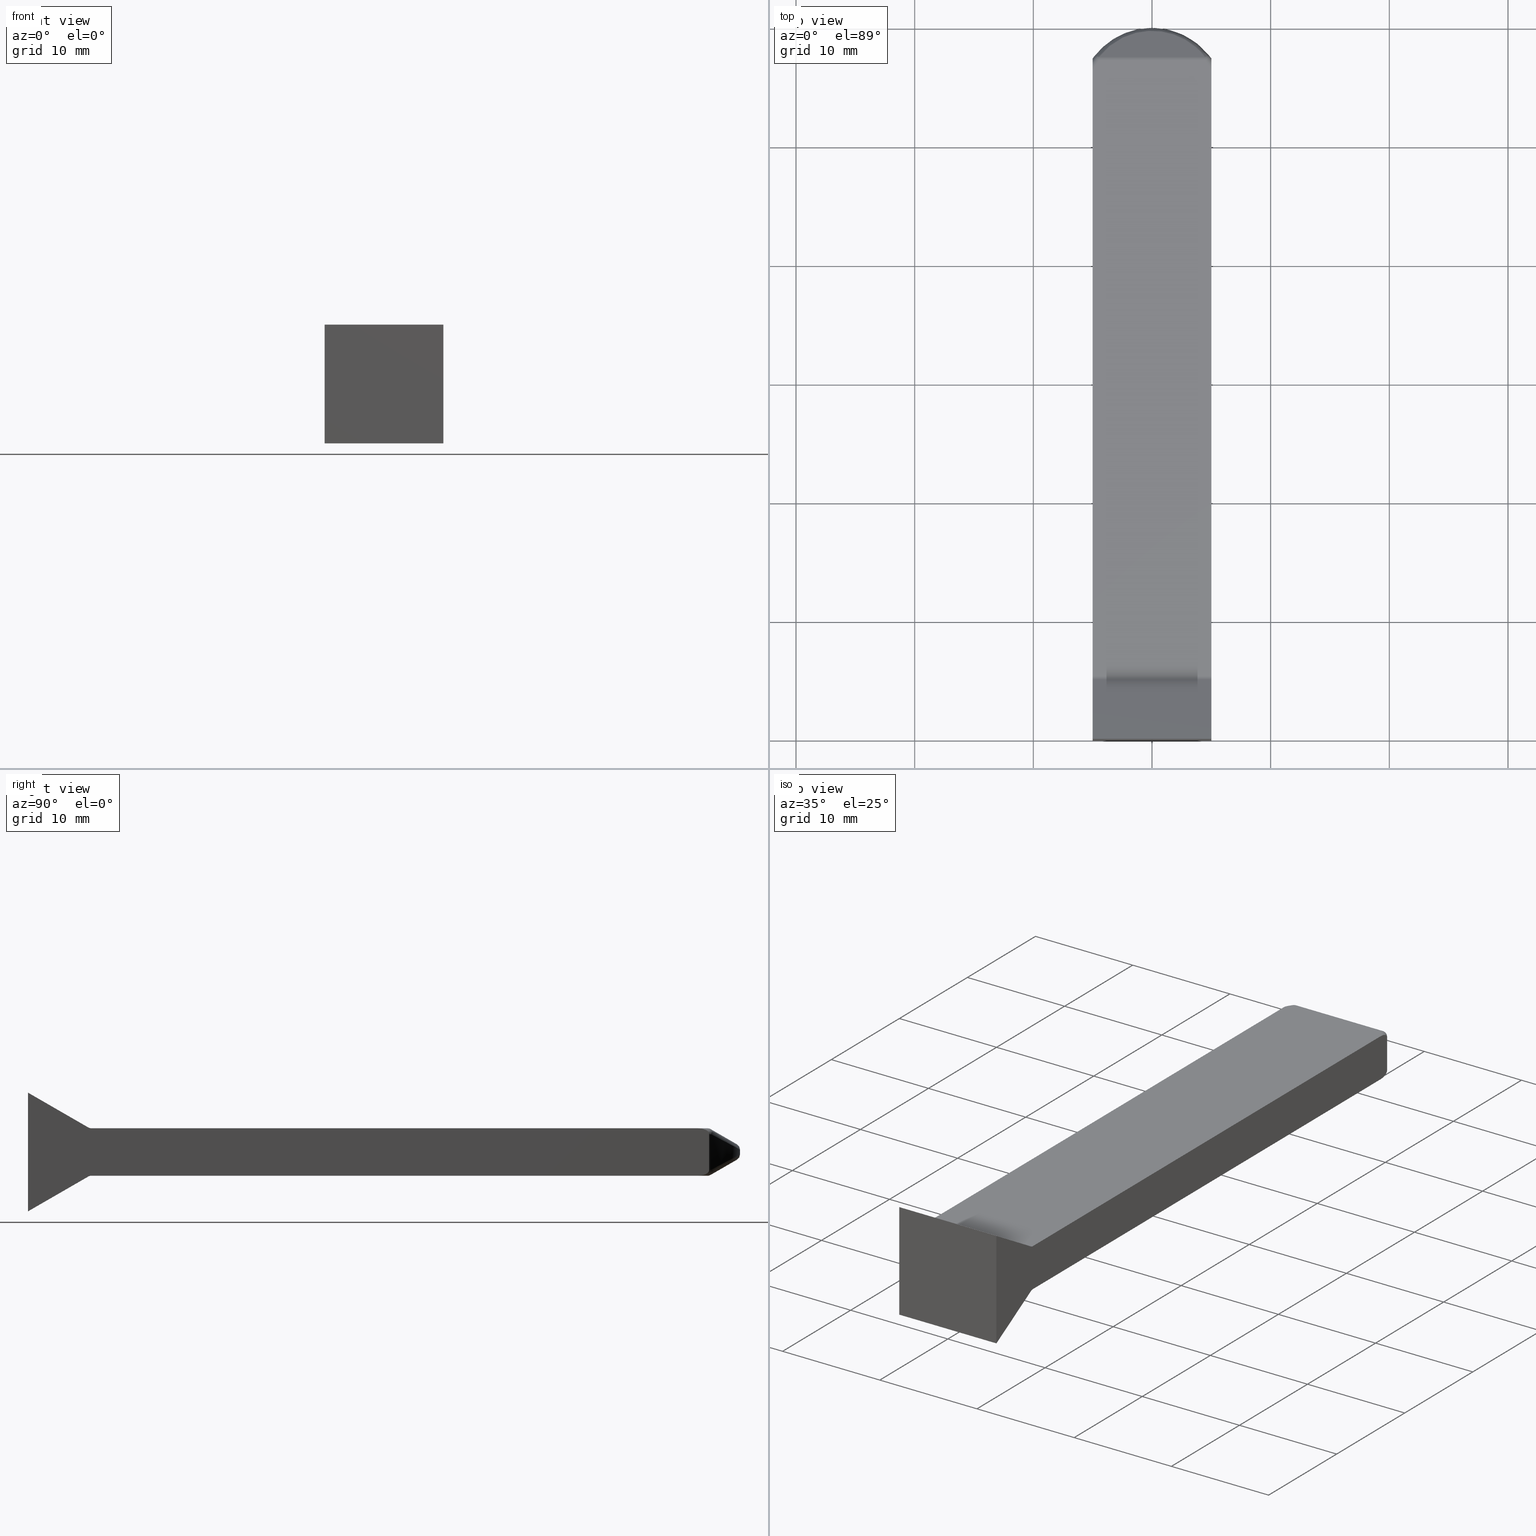
[diagram: canonical four-view strip — front | top / right | iso, engineering-drawing reading convention]
A machine part, canonical four-view strip (front | top / right | iso — engineering-drawing reading convention). The complete STEP part file that produces these views, byte-faithful:
ISO-10303-21;
HEADER;
/* Generated by software containing ST-Developer
 * from STEP Tools, Inc. (www.steptools.com) 
 */

FILE_DESCRIPTION(
/* description */ ('WKZ-0453'),
/* implementation_level */ '2;1');

FILE_NAME(
/* name */ 
'H:\\Eigene Dateien\\CAD Workspace Vault\\CAD\\E_3_Nocken\\E_3_01_Aufs
chwei\X\DFnocke\\03_F\X\E4cher\\E_3_01_03_00_00_WKZ-0453.stp',
/* time_stamp */ '2024-02-06T14:03:38+01:00',
/* author */ ('DFischer'),
/* organization */ (''),
/* preprocessor_version */ 'ST-DEVELOPER v18.1',
/* originating_system */ 'Autodesk Inventor 2021',
/* authorisation */ '');

FILE_SCHEMA (('AUTOMOTIVE_DESIGN { 1 0 10303 214 3 1 1 }'));
ENDSEC;

DATA;
#10=MECHANICAL_DESIGN_GEOMETRIC_PRESENTATION_REPRESENTATION('',(#13),#783);
#11=SHAPE_REPRESENTATION_RELATIONSHIP('SRR','None',#790,#12);
#12=ADVANCED_BREP_SHAPE_REPRESENTATION('',(#14),#782);
#13=STYLED_ITEM('',(#799),#14);
#14=MANIFOLD_SOLID_BREP('Volumenk\X\F6rper1',#381);
#15=CYLINDRICAL_SURFACE('',#424,6.11029034892354);
#16=CYLINDRICAL_SURFACE('',#441,0.5);
#17=CYLINDRICAL_SURFACE('',#443,0.5);
#18=CYLINDRICAL_SURFACE('',#444,0.5);
#19=CYLINDRICAL_SURFACE('',#446,0.5);
#20=TOROIDAL_SURFACE('',#415,5.61029034892354,0.5);
#21=TOROIDAL_SURFACE('',#418,5.61029034892354,0.5);
#22=TOROIDAL_SURFACE('',#437,5.61029034892354,0.5);
#23=TOROIDAL_SURFACE('',#439,5.61029034892354,0.5);
#24=ELLIPSE('',#410,6.47820528636593,5.61029034892354);
#25=ELLIPSE('',#411,6.9157381443504,6.11029034892354);
#26=ELLIPSE('',#426,6.9157381443504,6.11029034892354);
#27=ELLIPSE('',#433,6.47820528636593,5.61029034892354);
#28=B_SPLINE_SURFACE_WITH_KNOTS('',3,3,((#628,#629,#630,#631,#632,#633),
(#634,#635,#636,#637,#638,#639),(#640,#641,#642,#643,#644,#645),(#646,#647,
#648,#649,#650,#651),(#652,#653,#654,#655,#656,#657)),.UNSPECIFIED.,.F.,
 .F.,.F.,(4,1,4),(4,1,1,4),(0.,0.5,1.),(-0.924604284632391,-0.396258979128167,
0.132086326376056,0.924604284632392),.UNSPECIFIED.);
#29=B_SPLINE_SURFACE_WITH_KNOTS('',3,3,((#721,#722,#723,#724,#725,#726),
(#727,#728,#729,#730,#731,#732),(#733,#734,#735,#736,#737,#738),(#739,#740,
#741,#742,#743,#744),(#745,#746,#747,#748,#749,#750)),.UNSPECIFIED.,.F.,
 .F.,.F.,(4,1,4),(4,1,1,4),(0.,0.5,1.),(-0.924604284632393,-0.132086326376056,
0.396258979128168,0.924604284632393),.UNSPECIFIED.);
#30=SPHERICAL_SURFACE('',#405,0.5);
#31=SPHERICAL_SURFACE('',#412,0.5);
#32=SPHERICAL_SURFACE('',#428,0.5);
#33=SPHERICAL_SURFACE('',#434,0.5);
#34=B_SPLINE_CURVE_WITH_KNOTS('',3,(#593,#594,#595,#596,#597,#598,#599,
#600,#601,#602),.UNSPECIFIED.,.F.,.F.,(4,2,2,2,4),(0.532441530368069,0.547450862035391,
0.567695790465013,0.597524915434434,0.64457020237994),.UNSPECIFIED.);
#35=B_SPLINE_CURVE_WITH_KNOTS('',3,(#606,#607,#608,#609,#610,#611,#612,
#613,#614,#615),.UNSPECIFIED.,.F.,.F.,(4,2,2,2,4),(0.420312858356198,0.467358145301704,
0.497187270271125,0.517432198700747,0.532441530368069),.UNSPECIFIED.);
#36=B_SPLINE_CURVE_WITH_KNOTS('',3,(#673,#674,#675,#676,#677,#678,#679,
#680,#681,#682),.UNSPECIFIED.,.F.,.F.,(4,2,2,2,4),(0.532441530368069,0.547450862035391,
0.567695790465013,0.597524915434435,0.64457020237994),.UNSPECIFIED.);
#37=B_SPLINE_CURVE_WITH_KNOTS('',3,(#694,#695,#696,#697,#698,#699,#700,
#701,#702,#703),.UNSPECIFIED.,.F.,.F.,(4,2,2,2,4),(0.420312858356198,0.467358145301704,
0.497187270271125,0.517432198700747,0.532441530368069),.UNSPECIFIED.);
#38=CIRCLE('',#403,0.5);
#39=CIRCLE('',#404,0.5);
#40=CIRCLE('',#406,0.5);
#41=CIRCLE('',#407,0.500000000000001);
#42=CIRCLE('',#408,0.5);
#43=CIRCLE('',#409,0.500000000000001);
#44=CIRCLE('',#413,0.500000000000001);
#45=CIRCLE('',#414,0.5);
#46=CIRCLE('',#416,6.11029034892354);
#47=CIRCLE('',#417,5.61029034892354);
#48=CIRCLE('',#419,5.61029034892354);
#49=CIRCLE('',#420,6.11029034892354);
#50=CIRCLE('',#422,0.5);
#51=CIRCLE('',#423,0.5);
#52=CIRCLE('',#425,6.11029034892354);
#53=CIRCLE('',#427,6.11029034892354);
#54=CIRCLE('',#429,0.499999999999999);
#55=CIRCLE('',#430,0.500000000000002);
#56=CIRCLE('',#431,0.5);
#57=CIRCLE('',#432,0.500000000000002);
#58=CIRCLE('',#435,0.500000000000003);
#59=CIRCLE('',#436,0.5);
#60=CIRCLE('',#438,5.61029034892354);
#61=CIRCLE('',#440,5.61029034892354);
#62=FACE_OUTER_BOUND('',#86,.T.);
#63=FACE_OUTER_BOUND('',#87,.T.);
#64=FACE_OUTER_BOUND('',#88,.T.);
#65=FACE_OUTER_BOUND('',#89,.T.);
#66=FACE_OUTER_BOUND('',#90,.T.);
#67=FACE_OUTER_BOUND('',#91,.T.);
#68=FACE_OUTER_BOUND('',#92,.T.);
#69=FACE_OUTER_BOUND('',#93,.T.);
#70=FACE_OUTER_BOUND('',#94,.T.);
#71=FACE_OUTER_BOUND('',#95,.T.);
#72=FACE_OUTER_BOUND('',#96,.T.);
#73=FACE_OUTER_BOUND('',#97,.T.);
#74=FACE_OUTER_BOUND('',#98,.T.);
#75=FACE_OUTER_BOUND('',#99,.T.);
#76=FACE_OUTER_BOUND('',#100,.T.);
#77=FACE_OUTER_BOUND('',#101,.T.);
#78=FACE_OUTER_BOUND('',#102,.T.);
#79=FACE_OUTER_BOUND('',#103,.T.);
#80=FACE_OUTER_BOUND('',#104,.T.);
#81=FACE_OUTER_BOUND('',#105,.T.);
#82=FACE_OUTER_BOUND('',#106,.T.);
#83=FACE_OUTER_BOUND('',#107,.T.);
#84=FACE_OUTER_BOUND('',#108,.T.);
#85=FACE_OUTER_BOUND('',#109,.T.);
#86=EDGE_LOOP('',(#240,#241,#242,#243));
#87=EDGE_LOOP('',(#244,#245,#246,#247,#248,#249,#250,#251,#252,#253));
#88=EDGE_LOOP('',(#254,#255,#256));
#89=EDGE_LOOP('',(#257,#258,#259,#260));
#90=EDGE_LOOP('',(#261,#262,#263));
#91=EDGE_LOOP('',(#264,#265,#266,#267));
#92=EDGE_LOOP('',(#268,#269,#270,#271));
#93=EDGE_LOOP('',(#272,#273,#274,#275,#276,#277,#278,#279,#280,#281));
#94=EDGE_LOOP('',(#282,#283,#284,#285,#286,#287,#288,#289));
#95=EDGE_LOOP('',(#290,#291,#292));
#96=EDGE_LOOP('',(#293,#294,#295,#296));
#97=EDGE_LOOP('',(#297,#298,#299));
#98=EDGE_LOOP('',(#300,#301,#302,#303));
#99=EDGE_LOOP('',(#304,#305,#306,#307));
#100=EDGE_LOOP('',(#308,#309,#310,#311));
#101=EDGE_LOOP('',(#312,#313,#314,#315,#316,#317));
#102=EDGE_LOOP('',(#318,#319,#320,#321));
#103=EDGE_LOOP('',(#322,#323,#324,#325));
#104=EDGE_LOOP('',(#326,#327,#328,#329,#330,#331));
#105=EDGE_LOOP('',(#332,#333,#334,#335));
#106=EDGE_LOOP('',(#336,#337,#338,#339));
#107=EDGE_LOOP('',(#340,#341));
#108=EDGE_LOOP('',(#342,#343,#344,#345));
#109=EDGE_LOOP('',(#346,#347));
#110=LINE('',#579,#132);
#111=LINE('',#581,#133);
#112=LINE('',#583,#134);
#113=LINE('',#584,#135);
#114=LINE('',#587,#136);
#115=LINE('',#591,#137);
#116=LINE('',#604,#138);
#117=LINE('',#617,#139);
#118=LINE('',#620,#140);
#119=LINE('',#687,#141);
#120=LINE('',#690,#142);
#121=LINE('',#692,#143);
#122=LINE('',#705,#144);
#123=LINE('',#708,#145);
#124=LINE('',#763,#146);
#125=LINE('',#764,#147);
#126=LINE('',#766,#148);
#127=LINE('',#768,#149);
#128=LINE('',#770,#150);
#129=LINE('',#771,#151);
#130=LINE('',#773,#152);
#131=LINE('',#775,#153);
#132=VECTOR('',#455,10.);
#133=VECTOR('',#456,10.);
#134=VECTOR('',#457,10.);
#135=VECTOR('',#458,10.);
#136=VECTOR('',#461,10.);
#137=VECTOR('',#464,10.);
#138=VECTOR('',#465,10.);
#139=VECTOR('',#466,10.);
#140=VECTOR('',#469,10.);
#141=VECTOR('',#504,10.);
#142=VECTOR('',#507,10.);
#143=VECTOR('',#508,10.);
#144=VECTOR('',#509,10.);
#145=VECTOR('',#512,10.);
#146=VECTOR('',#549,10.);
#147=VECTOR('',#550,10.);
#148=VECTOR('',#553,10.);
#149=VECTOR('',#556,10.);
#150=VECTOR('',#559,10.);
#151=VECTOR('',#560,10.);
#152=VECTOR('',#563,10.);
#153=VECTOR('',#566,10.);
#154=VERTEX_POINT('',#577);
#155=VERTEX_POINT('',#578);
#156=VERTEX_POINT('',#580);
#157=VERTEX_POINT('',#582);
#158=VERTEX_POINT('',#586);
#159=VERTEX_POINT('',#588);
#160=VERTEX_POINT('',#590);
#161=VERTEX_POINT('',#592);
#162=VERTEX_POINT('',#603);
#163=VERTEX_POINT('',#605);
#164=VERTEX_POINT('',#616);
#165=VERTEX_POINT('',#618);
#166=VERTEX_POINT('',#622);
#167=VERTEX_POINT('',#623);
#168=VERTEX_POINT('',#625);
#169=VERTEX_POINT('',#658);
#170=VERTEX_POINT('',#659);
#171=VERTEX_POINT('',#664);
#172=VERTEX_POINT('',#671);
#173=VERTEX_POINT('',#672);
#174=VERTEX_POINT('',#686);
#175=VERTEX_POINT('',#688);
#176=VERTEX_POINT('',#691);
#177=VERTEX_POINT('',#693);
#178=VERTEX_POINT('',#704);
#179=VERTEX_POINT('',#706);
#180=VERTEX_POINT('',#710);
#181=VERTEX_POINT('',#712);
#182=VERTEX_POINT('',#716);
#183=VERTEX_POINT('',#718);
#184=VERTEX_POINT('',#751);
#185=VERTEX_POINT('',#755);
#186=EDGE_CURVE('',#154,#155,#110,.T.);
#187=EDGE_CURVE('',#156,#155,#111,.T.);
#188=EDGE_CURVE('',#157,#156,#112,.T.);
#189=EDGE_CURVE('',#154,#157,#113,.T.);
#190=EDGE_CURVE('',#155,#158,#114,.T.);
#191=EDGE_CURVE('',#159,#158,#38,.T.);
#192=EDGE_CURVE('',#159,#160,#115,.T.);
#193=EDGE_CURVE('',#161,#160,#34,.T.);
#194=EDGE_CURVE('',#161,#162,#116,.T.);
#195=EDGE_CURVE('',#163,#162,#35,.T.);
#196=EDGE_CURVE('',#163,#164,#117,.T.);
#197=EDGE_CURVE('',#165,#164,#39,.T.);
#198=EDGE_CURVE('',#165,#156,#118,.T.);
#199=EDGE_CURVE('',#166,#167,#40,.T.);
#200=EDGE_CURVE('',#167,#168,#41,.T.);
#201=EDGE_CURVE('',#168,#166,#42,.T.);
#202=EDGE_CURVE('',#169,#170,#43,.T.);
#203=EDGE_CURVE('',#170,#168,#24,.T.);
#204=EDGE_CURVE('',#167,#169,#25,.T.);
#205=EDGE_CURVE('',#169,#171,#44,.T.);
#206=EDGE_CURVE('',#171,#170,#45,.T.);
#207=EDGE_CURVE('',#162,#167,#46,.T.);
#208=EDGE_CURVE('',#166,#163,#47,.T.);
#209=EDGE_CURVE('',#172,#173,#36,.T.);
#210=EDGE_CURVE('',#173,#171,#48,.T.);
#211=EDGE_CURVE('',#169,#172,#49,.T.);
#212=EDGE_CURVE('',#157,#174,#119,.T.);
#213=EDGE_CURVE('',#175,#174,#50,.T.);
#214=EDGE_CURVE('',#175,#173,#120,.T.);
#215=EDGE_CURVE('',#172,#176,#121,.T.);
#216=EDGE_CURVE('',#177,#176,#37,.T.);
#217=EDGE_CURVE('',#177,#178,#122,.T.);
#218=EDGE_CURVE('',#179,#178,#51,.T.);
#219=EDGE_CURVE('',#179,#154,#123,.T.);
#220=EDGE_CURVE('',#180,#161,#52,.T.);
#221=EDGE_CURVE('',#181,#180,#26,.T.);
#222=EDGE_CURVE('',#176,#181,#53,.T.);
#223=EDGE_CURVE('',#182,#181,#54,.T.);
#224=EDGE_CURVE('',#181,#183,#55,.T.);
#225=EDGE_CURVE('',#183,#182,#56,.T.);
#226=EDGE_CURVE('',#180,#184,#57,.T.);
#227=EDGE_CURVE('',#184,#183,#27,.T.);
#228=EDGE_CURVE('',#180,#185,#58,.T.);
#229=EDGE_CURVE('',#185,#184,#59,.T.);
#230=EDGE_CURVE('',#182,#177,#60,.T.);
#231=EDGE_CURVE('',#160,#185,#61,.T.);
#232=EDGE_CURVE('',#185,#182,#124,.T.);
#233=EDGE_CURVE('',#183,#184,#125,.T.);
#234=EDGE_CURVE('',#178,#159,#126,.T.);
#235=EDGE_CURVE('',#158,#179,#127,.T.);
#236=EDGE_CURVE('',#171,#166,#128,.T.);
#237=EDGE_CURVE('',#168,#170,#129,.T.);
#238=EDGE_CURVE('',#164,#175,#130,.T.);
#239=EDGE_CURVE('',#174,#165,#131,.T.);
#240=ORIENTED_EDGE('',*,*,#186,.T.);
#241=ORIENTED_EDGE('',*,*,#187,.F.);
#242=ORIENTED_EDGE('',*,*,#188,.F.);
#243=ORIENTED_EDGE('',*,*,#189,.F.);
#244=ORIENTED_EDGE('',*,*,#187,.T.);
#245=ORIENTED_EDGE('',*,*,#190,.T.);
#246=ORIENTED_EDGE('',*,*,#191,.F.);
#247=ORIENTED_EDGE('',*,*,#192,.T.);
#248=ORIENTED_EDGE('',*,*,#193,.F.);
#249=ORIENTED_EDGE('',*,*,#194,.T.);
#250=ORIENTED_EDGE('',*,*,#195,.F.);
#251=ORIENTED_EDGE('',*,*,#196,.T.);
#252=ORIENTED_EDGE('',*,*,#197,.F.);
#253=ORIENTED_EDGE('',*,*,#198,.T.);
#254=ORIENTED_EDGE('',*,*,#199,.T.);
#255=ORIENTED_EDGE('',*,*,#200,.T.);
#256=ORIENTED_EDGE('',*,*,#201,.T.);
#257=ORIENTED_EDGE('',*,*,#202,.T.);
#258=ORIENTED_EDGE('',*,*,#203,.T.);
#259=ORIENTED_EDGE('',*,*,#200,.F.);
#260=ORIENTED_EDGE('',*,*,#204,.T.);
#261=ORIENTED_EDGE('',*,*,#205,.T.);
#262=ORIENTED_EDGE('',*,*,#206,.T.);
#263=ORIENTED_EDGE('',*,*,#202,.F.);
#264=ORIENTED_EDGE('',*,*,#195,.T.);
#265=ORIENTED_EDGE('',*,*,#207,.T.);
#266=ORIENTED_EDGE('',*,*,#199,.F.);
#267=ORIENTED_EDGE('',*,*,#208,.T.);
#268=ORIENTED_EDGE('',*,*,#209,.T.);
#269=ORIENTED_EDGE('',*,*,#210,.T.);
#270=ORIENTED_EDGE('',*,*,#205,.F.);
#271=ORIENTED_EDGE('',*,*,#211,.T.);
#272=ORIENTED_EDGE('',*,*,#189,.T.);
#273=ORIENTED_EDGE('',*,*,#212,.T.);
#274=ORIENTED_EDGE('',*,*,#213,.F.);
#275=ORIENTED_EDGE('',*,*,#214,.T.);
#276=ORIENTED_EDGE('',*,*,#209,.F.);
#277=ORIENTED_EDGE('',*,*,#215,.T.);
#278=ORIENTED_EDGE('',*,*,#216,.F.);
#279=ORIENTED_EDGE('',*,*,#217,.T.);
#280=ORIENTED_EDGE('',*,*,#218,.F.);
#281=ORIENTED_EDGE('',*,*,#219,.T.);
#282=ORIENTED_EDGE('',*,*,#211,.F.);
#283=ORIENTED_EDGE('',*,*,#204,.F.);
#284=ORIENTED_EDGE('',*,*,#207,.F.);
#285=ORIENTED_EDGE('',*,*,#194,.F.);
#286=ORIENTED_EDGE('',*,*,#220,.F.);
#287=ORIENTED_EDGE('',*,*,#221,.F.);
#288=ORIENTED_EDGE('',*,*,#222,.F.);
#289=ORIENTED_EDGE('',*,*,#215,.F.);
#290=ORIENTED_EDGE('',*,*,#223,.T.);
#291=ORIENTED_EDGE('',*,*,#224,.T.);
#292=ORIENTED_EDGE('',*,*,#225,.T.);
#293=ORIENTED_EDGE('',*,*,#226,.T.);
#294=ORIENTED_EDGE('',*,*,#227,.T.);
#295=ORIENTED_EDGE('',*,*,#224,.F.);
#296=ORIENTED_EDGE('',*,*,#221,.T.);
#297=ORIENTED_EDGE('',*,*,#228,.T.);
#298=ORIENTED_EDGE('',*,*,#229,.T.);
#299=ORIENTED_EDGE('',*,*,#226,.F.);
#300=ORIENTED_EDGE('',*,*,#216,.T.);
#301=ORIENTED_EDGE('',*,*,#222,.T.);
#302=ORIENTED_EDGE('',*,*,#223,.F.);
#303=ORIENTED_EDGE('',*,*,#230,.T.);
#304=ORIENTED_EDGE('',*,*,#193,.T.);
#305=ORIENTED_EDGE('',*,*,#231,.T.);
#306=ORIENTED_EDGE('',*,*,#228,.F.);
#307=ORIENTED_EDGE('',*,*,#220,.T.);
#308=ORIENTED_EDGE('',*,*,#229,.F.);
#309=ORIENTED_EDGE('',*,*,#232,.T.);
#310=ORIENTED_EDGE('',*,*,#225,.F.);
#311=ORIENTED_EDGE('',*,*,#233,.T.);
#312=ORIENTED_EDGE('',*,*,#231,.F.);
#313=ORIENTED_EDGE('',*,*,#192,.F.);
#314=ORIENTED_EDGE('',*,*,#234,.F.);
#315=ORIENTED_EDGE('',*,*,#217,.F.);
#316=ORIENTED_EDGE('',*,*,#230,.F.);
#317=ORIENTED_EDGE('',*,*,#232,.F.);
#318=ORIENTED_EDGE('',*,*,#218,.T.);
#319=ORIENTED_EDGE('',*,*,#234,.T.);
#320=ORIENTED_EDGE('',*,*,#191,.T.);
#321=ORIENTED_EDGE('',*,*,#235,.T.);
#322=ORIENTED_EDGE('',*,*,#206,.F.);
#323=ORIENTED_EDGE('',*,*,#236,.T.);
#324=ORIENTED_EDGE('',*,*,#201,.F.);
#325=ORIENTED_EDGE('',*,*,#237,.T.);
#326=ORIENTED_EDGE('',*,*,#210,.F.);
#327=ORIENTED_EDGE('',*,*,#214,.F.);
#328=ORIENTED_EDGE('',*,*,#238,.F.);
#329=ORIENTED_EDGE('',*,*,#196,.F.);
#330=ORIENTED_EDGE('',*,*,#208,.F.);
#331=ORIENTED_EDGE('',*,*,#236,.F.);
#332=ORIENTED_EDGE('',*,*,#213,.T.);
#333=ORIENTED_EDGE('',*,*,#239,.T.);
#334=ORIENTED_EDGE('',*,*,#197,.T.);
#335=ORIENTED_EDGE('',*,*,#238,.T.);
#336=ORIENTED_EDGE('',*,*,#239,.F.);
#337=ORIENTED_EDGE('',*,*,#212,.F.);
#338=ORIENTED_EDGE('',*,*,#188,.T.);
#339=ORIENTED_EDGE('',*,*,#198,.F.);
#340=ORIENTED_EDGE('',*,*,#227,.F.);
#341=ORIENTED_EDGE('',*,*,#233,.F.);
#342=ORIENTED_EDGE('',*,*,#235,.F.);
#343=ORIENTED_EDGE('',*,*,#190,.F.);
#344=ORIENTED_EDGE('',*,*,#186,.F.);
#345=ORIENTED_EDGE('',*,*,#219,.F.);
#346=ORIENTED_EDGE('',*,*,#203,.F.);
#347=ORIENTED_EDGE('',*,*,#237,.F.);
#348=PLANE('',#401);
#349=PLANE('',#402);
#350=PLANE('',#421);
#351=PLANE('',#442);
#352=PLANE('',#445);
#353=PLANE('',#447);
#354=PLANE('',#448);
#355=PLANE('',#449);
#356=PLANE('',#450);
#357=ADVANCED_FACE('',(#62),#348,.F.);
#358=ADVANCED_FACE('',(#63),#349,.T.);
#359=ADVANCED_FACE('',(#64),#30,.T.);
#360=ADVANCED_FACE('',(#65),#28,.F.);
#361=ADVANCED_FACE('',(#66),#31,.T.);
#362=ADVANCED_FACE('',(#67),#20,.T.);
#363=ADVANCED_FACE('',(#68),#21,.T.);
#364=ADVANCED_FACE('',(#69),#350,.T.);
#365=ADVANCED_FACE('',(#70),#15,.T.);
#366=ADVANCED_FACE('',(#71),#32,.T.);
#367=ADVANCED_FACE('',(#72),#29,.F.);
#368=ADVANCED_FACE('',(#73),#33,.T.);
#369=ADVANCED_FACE('',(#74),#22,.T.);
#370=ADVANCED_FACE('',(#75),#23,.T.);
#371=ADVANCED_FACE('',(#76),#16,.T.);
#372=ADVANCED_FACE('',(#77),#351,.T.);
#373=ADVANCED_FACE('',(#78),#17,.F.);
#374=ADVANCED_FACE('',(#79),#18,.T.);
#375=ADVANCED_FACE('',(#80),#352,.T.);
#376=ADVANCED_FACE('',(#81),#19,.F.);
#377=ADVANCED_FACE('',(#82),#353,.T.);
#378=ADVANCED_FACE('',(#83),#354,.T.);
#379=ADVANCED_FACE('',(#84),#355,.T.);
#380=ADVANCED_FACE('',(#85),#356,.T.);
#381=CLOSED_SHELL('',(#357,#358,#359,#360,#361,#362,#363,#364,#365,#366,
#367,#368,#369,#370,#371,#372,#373,#374,#375,#376,#377,#378,#379,#380));
#382=DERIVED_UNIT_ELEMENT(#384,1.);
#383=DERIVED_UNIT_ELEMENT(#785,3.);
#384=(
MASS_UNIT()
NAMED_UNIT(*)
SI_UNIT($,.GRAM.)
);
#385=DERIVED_UNIT((#382,#383));
#386=MEASURE_REPRESENTATION_ITEM('density measure',
POSITIVE_RATIO_MEASURE(1.),#385);
#387=PROPERTY_DEFINITION_REPRESENTATION(#392,#389);
#388=PROPERTY_DEFINITION_REPRESENTATION(#393,#390);
#389=REPRESENTATION('material name',(#391),#782);
#390=REPRESENTATION('density',(#386),#782);
#391=DESCRIPTIVE_REPRESENTATION_ITEM('Generisch','Generisch');
#392=PROPERTY_DEFINITION('material property','material name',#792);
#393=PROPERTY_DEFINITION('material property','density of part',#792);
#394=DATE_TIME_ROLE('creation_date');
#395=APPLIED_DATE_AND_TIME_ASSIGNMENT(#396,#394,(#792));
#396=DATE_AND_TIME(#397,#398);
#397=CALENDAR_DATE(2023,19,12);
#398=LOCAL_TIME(0,0,0.,#399);
#399=COORDINATED_UNIVERSAL_TIME_OFFSET(0,0,.BEHIND.);
#400=AXIS2_PLACEMENT_3D('placement',#575,#451,#452);
#401=AXIS2_PLACEMENT_3D('',#576,#453,#454);
#402=AXIS2_PLACEMENT_3D('',#585,#459,#460);
#403=AXIS2_PLACEMENT_3D('',#589,#462,#463);
#404=AXIS2_PLACEMENT_3D('',#619,#467,#468);
#405=AXIS2_PLACEMENT_3D('',#621,#470,#471);
#406=AXIS2_PLACEMENT_3D('',#624,#472,#473);
#407=AXIS2_PLACEMENT_3D('',#626,#474,#475);
#408=AXIS2_PLACEMENT_3D('',#627,#476,#477);
#409=AXIS2_PLACEMENT_3D('',#660,#478,#479);
#410=AXIS2_PLACEMENT_3D('',#661,#480,#481);
#411=AXIS2_PLACEMENT_3D('',#662,#482,#483);
#412=AXIS2_PLACEMENT_3D('',#663,#484,#485);
#413=AXIS2_PLACEMENT_3D('',#665,#486,#487);
#414=AXIS2_PLACEMENT_3D('',#666,#488,#489);
#415=AXIS2_PLACEMENT_3D('',#667,#490,#491);
#416=AXIS2_PLACEMENT_3D('',#668,#492,#493);
#417=AXIS2_PLACEMENT_3D('',#669,#494,#495);
#418=AXIS2_PLACEMENT_3D('',#670,#496,#497);
#419=AXIS2_PLACEMENT_3D('',#683,#498,#499);
#420=AXIS2_PLACEMENT_3D('',#684,#500,#501);
#421=AXIS2_PLACEMENT_3D('',#685,#502,#503);
#422=AXIS2_PLACEMENT_3D('',#689,#505,#506);
#423=AXIS2_PLACEMENT_3D('',#707,#510,#511);
#424=AXIS2_PLACEMENT_3D('',#709,#513,#514);
#425=AXIS2_PLACEMENT_3D('',#711,#515,#516);
#426=AXIS2_PLACEMENT_3D('',#713,#517,#518);
#427=AXIS2_PLACEMENT_3D('',#714,#519,#520);
#428=AXIS2_PLACEMENT_3D('',#715,#521,#522);
#429=AXIS2_PLACEMENT_3D('',#717,#523,#524);
#430=AXIS2_PLACEMENT_3D('',#719,#525,#526);
#431=AXIS2_PLACEMENT_3D('',#720,#527,#528);
#432=AXIS2_PLACEMENT_3D('',#752,#529,#530);
#433=AXIS2_PLACEMENT_3D('',#753,#531,#532);
#434=AXIS2_PLACEMENT_3D('',#754,#533,#534);
#435=AXIS2_PLACEMENT_3D('',#756,#535,#536);
#436=AXIS2_PLACEMENT_3D('',#757,#537,#538);
#437=AXIS2_PLACEMENT_3D('',#758,#539,#540);
#438=AXIS2_PLACEMENT_3D('',#759,#541,#542);
#439=AXIS2_PLACEMENT_3D('',#760,#543,#544);
#440=AXIS2_PLACEMENT_3D('',#761,#545,#546);
#441=AXIS2_PLACEMENT_3D('',#762,#547,#548);
#442=AXIS2_PLACEMENT_3D('',#765,#551,#552);
#443=AXIS2_PLACEMENT_3D('',#767,#554,#555);
#444=AXIS2_PLACEMENT_3D('',#769,#557,#558);
#445=AXIS2_PLACEMENT_3D('',#772,#561,#562);
#446=AXIS2_PLACEMENT_3D('',#774,#564,#565);
#447=AXIS2_PLACEMENT_3D('',#776,#567,#568);
#448=AXIS2_PLACEMENT_3D('',#777,#569,#570);
#449=AXIS2_PLACEMENT_3D('',#778,#571,#572);
#450=AXIS2_PLACEMENT_3D('',#779,#573,#574);
#451=DIRECTION('axis',(0.,0.,1.));
#452=DIRECTION('refdir',(1.,0.,0.));
#453=DIRECTION('center_axis',(0.,1.,7.93016446160828E-16));
#454=DIRECTION('ref_axis',(0.,-7.93016446160828E-16,1.));
#455=DIRECTION('',(1.,0.,0.));
#456=DIRECTION('',(0.,7.93016446160828E-16,-1.));
#457=DIRECTION('',(1.,0.,0.));
#458=DIRECTION('',(0.,-7.93016446160828E-16,1.));
#459=DIRECTION('center_axis',(1.,0.,0.));
#460=DIRECTION('ref_axis',(0.,0.,-1.));
#461=DIRECTION('',(0.,0.866025403784438,0.500000000000001));
#462=DIRECTION('center_axis',(1.,0.,0.));
#463=DIRECTION('ref_axis',(0.,-0.258819045102524,0.965925826289067));
#464=DIRECTION('',(0.,1.,-7.02809666932559E-17));
#465=DIRECTION('',(0.,0.,1.));
#466=DIRECTION('',(0.,-1.,-3.20587813129454E-16));
#467=DIRECTION('center_axis',(1.,0.,0.));
#468=DIRECTION('ref_axis',(0.,-0.258819045102524,-0.965925826289068));
#469=DIRECTION('',(0.,-0.866025403784438,0.5));
#470=DIRECTION('center_axis',(0.187714069705197,-0.878791264365374,0.438736072952544));
#471=DIRECTION('ref_axis',(0.345681652971174,0.477206363825032,0.807946954399859));
#472=DIRECTION('center_axis',(-0.60215057176192,0.798382545479793,0.));
#473=DIRECTION('ref_axis',(0.,0.,1.));
#474=DIRECTION('center_axis',(0.546851392440244,-0.725062180740125,0.418614845229527));
#475=DIRECTION('ref_axis',(0.798382545479792,0.60215057176192,0.));
#476=DIRECTION('center_axis',(1.,0.,0.));
#477=DIRECTION('ref_axis',(0.,0.258819045102525,0.965925826289067));
#478=DIRECTION('center_axis',(0.546851392440244,0.725062180740124,-0.418614845229528));
#479=DIRECTION('ref_axis',(-0.798382545479792,0.60215057176192,5.55111512312577E-16));
#480=DIRECTION('center_axis',(0.,-0.5,-0.866025403784439));
#481=DIRECTION('ref_axis',(8.56890894582901E-17,0.866025403784439,-0.5));
#482=DIRECTION('center_axis',(8.02678616115707E-17,0.468366872136282,0.883534081450895));
#483=DIRECTION('ref_axis',(8.7421489732348E-17,0.883534081450895,-0.468366872136282));
#484=DIRECTION('center_axis',(-0.187714069705197,-0.878791264365374,0.438736072952544));
#485=DIRECTION('ref_axis',(-0.345681652971173,0.477206363825033,0.807946954399859));
#486=DIRECTION('center_axis',(0.602150571761921,0.798382545479792,0.));
#487=DIRECTION('ref_axis',(-0.798382545479792,0.60215057176192,-5.55111512312577E-16));
#488=DIRECTION('center_axis',(-1.,0.,0.));
#489=DIRECTION('ref_axis',(0.,0.258819045102525,0.965925826289067));
#490=DIRECTION('center_axis',(0.,3.20587813129454E-16,-1.));
#491=DIRECTION('ref_axis',(-0.798382545479793,-0.602150571761919,-1.81697261705534E-16));
#492=DIRECTION('center_axis',(0.,-3.20587813129454E-16,1.));
#493=DIRECTION('ref_axis',(-0.798382545479793,-0.602150571761919,-1.93042134975804E-16));
#494=DIRECTION('center_axis',(0.,3.20587813129454E-16,-1.));
#495=DIRECTION('ref_axis',(-0.798382545479793,-0.602150571761919,-1.97890475461431E-16));
#496=DIRECTION('center_axis',(0.,3.20587813129454E-16,-1.));
#497=DIRECTION('ref_axis',(0.798382545479793,-0.602150571761919,-1.81697261705534E-16));
#498=DIRECTION('center_axis',(0.,3.20587813129454E-16,-1.));
#499=DIRECTION('ref_axis',(0.798382545479793,-0.602150571761919,-1.97890475461431E-16));
#500=DIRECTION('center_axis',(0.,-3.20587813129454E-16,1.));
#501=DIRECTION('ref_axis',(0.798382545479793,-0.602150571761919,-1.93042134975804E-16));
#502=DIRECTION('center_axis',(-1.,0.,0.));
#503=DIRECTION('ref_axis',(0.,0.,1.));
#504=DIRECTION('',(0.,0.866025403784438,-0.5));
#505=DIRECTION('center_axis',(-1.,0.,0.));
#506=DIRECTION('ref_axis',(0.,-0.258819045102524,-0.965925826289068));
#507=DIRECTION('',(0.,1.,3.20587813129454E-16));
#508=DIRECTION('',(0.,0.,-1.));
#509=DIRECTION('',(0.,-1.,7.02809666932559E-17));
#510=DIRECTION('center_axis',(-1.,0.,0.));
#511=DIRECTION('ref_axis',(0.,-0.258819045102524,0.965925826289067));
#512=DIRECTION('',(0.,-0.866025403784438,-0.500000000000001));
#513=DIRECTION('center_axis',(0.,0.,-1.));
#514=DIRECTION('ref_axis',(-0.818291720111279,-0.574803149606301,0.));
#515=DIRECTION('center_axis',(0.,-7.02809666932559E-17,-1.));
#516=DIRECTION('ref_axis',(-0.798382545479794,-0.602150571761918,4.23197242783243E-17));
#517=DIRECTION('center_axis',(-8.02678616115707E-17,0.468366872136282,-0.883534081450895));
#518=DIRECTION('ref_axis',(0.,0.883534081450895,0.468366872136282));
#519=DIRECTION('center_axis',(0.,-7.02809666932559E-17,-1.));
#520=DIRECTION('ref_axis',(0.798382545479794,-0.602150571761918,4.23197242783243E-17));
#521=DIRECTION('center_axis',(-0.187714069705199,-0.878791264365373,-0.438736072952545));
#522=DIRECTION('ref_axis',(-0.345681652971175,0.477206363825033,-0.807946954399858));
#523=DIRECTION('center_axis',(0.602150571761919,0.798382545479793,0.));
#524=DIRECTION('ref_axis',(0.,0.,-1.));
#525=DIRECTION('center_axis',(-0.546851392440242,-0.725062180740123,-0.418614845229532));
#526=DIRECTION('ref_axis',(-0.798382545479793,0.602150571761919,0.));
#527=DIRECTION('center_axis',(-1.,0.,0.));
#528=DIRECTION('ref_axis',(0.,0.258819045102525,-0.965925826289067));
#529=DIRECTION('center_axis',(-0.546851392440244,0.725062180740126,0.418614845229525));
#530=DIRECTION('ref_axis',(0.798382545479793,0.602150571761919,5.55111512312576E-16));
#531=DIRECTION('center_axis',(0.,-0.5,0.866025403784438));
#532=DIRECTION('ref_axis',(0.,0.866025403784438,0.5));
#533=DIRECTION('center_axis',(0.187714069705199,-0.878791264365372,-0.438736072952547));
#534=DIRECTION('ref_axis',(0.345681652971175,0.477206363825034,-0.807946954399858));
#535=DIRECTION('center_axis',(-0.602150571761917,0.798382545479794,0.));
#536=DIRECTION('ref_axis',(0.798382545479795,0.602150571761917,0.));
#537=DIRECTION('center_axis',(1.,0.,0.));
#538=DIRECTION('ref_axis',(0.,0.258819045102525,-0.965925826289067));
#539=DIRECTION('center_axis',(0.,7.02809666932559E-17,1.));
#540=DIRECTION('ref_axis',(0.798382545479794,-0.602150571761917,3.63394523411067E-17));
#541=DIRECTION('center_axis',(0.,7.02809666932559E-17,1.));
#542=DIRECTION('ref_axis',(0.798382545479794,-0.602150571761917,3.71044641490183E-17));
#543=DIRECTION('center_axis',(0.,7.02809666932559E-17,1.));
#544=DIRECTION('ref_axis',(-0.798382545479794,-0.602150571761918,3.63394523411067E-17));
#545=DIRECTION('center_axis',(0.,7.02809666932559E-17,1.));
#546=DIRECTION('ref_axis',(-0.798382545479794,-0.602150571761918,3.71044641490183E-17));
#547=DIRECTION('center_axis',(1.,0.,0.));
#548=DIRECTION('ref_axis',(0.,0.258819045102524,-0.965925826289068));
#549=DIRECTION('',(-1.,0.,0.));
#550=DIRECTION('',(1.,0.,0.));
#551=DIRECTION('center_axis',(0.,-7.02809666932559E-17,-1.));
#552=DIRECTION('ref_axis',(0.,1.,-7.02809666932559E-17));
#553=DIRECTION('',(1.,0.,0.));
#554=DIRECTION('center_axis',(1.,0.,0.));
#555=DIRECTION('ref_axis',(0.,-0.258819045102524,0.965925826289067));
#556=DIRECTION('',(-1.,0.,0.));
#557=DIRECTION('center_axis',(1.,0.,0.));
#558=DIRECTION('ref_axis',(0.,0.258819045102525,0.965925826289067));
#559=DIRECTION('',(1.,0.,0.));
#560=DIRECTION('',(-1.,0.,0.));
#561=DIRECTION('center_axis',(0.,-3.20587813129454E-16,1.));
#562=DIRECTION('ref_axis',(0.,-1.,-3.20587813129454E-16));
#563=DIRECTION('',(-1.,0.,0.));
#564=DIRECTION('center_axis',(1.,0.,0.));
#565=DIRECTION('ref_axis',(0.,-0.258819045102524,-0.965925826289068));
#566=DIRECTION('',(1.,0.,0.));
#567=DIRECTION('center_axis',(0.,0.5,0.866025403784438));
#568=DIRECTION('ref_axis',(0.,-0.866025403784438,0.5));
#569=DIRECTION('center_axis',(0.,0.5,-0.866025403784438));
#570=DIRECTION('ref_axis',(0.,0.866025403784438,0.5));
#571=DIRECTION('center_axis',(0.,0.500000000000001,-0.866025403784438));
#572=DIRECTION('ref_axis',(0.,0.866025403784438,0.500000000000001));
#573=DIRECTION('center_axis',(0.,0.5,0.866025403784439));
#574=DIRECTION('ref_axis',(0.,-0.866025403784439,0.5));
#575=CARTESIAN_POINT('',(0.,0.,0.));
#576=CARTESIAN_POINT('Origin',(0.,-20.0000000227066,5.55111512312575E-16));
#577=CARTESIAN_POINT('',(-5.,-20.0000000227066,-5.));
#578=CARTESIAN_POINT('',(5.,-20.0000000227066,-5.));
#579=CARTESIAN_POINT('',(0.,-20.0000000227066,-5.));
#580=CARTESIAN_POINT('',(5.,-20.0000000227066,5.));
#581=CARTESIAN_POINT('',(5.,-20.0000000227066,-1.14789130626797E-14));
#582=CARTESIAN_POINT('',(-5.,-20.0000000227066,5.));
#583=CARTESIAN_POINT('',(0.,-20.0000000227066,5.));
#584=CARTESIAN_POINT('',(-5.,-20.0000000227066,-1.14789130626797E-14));
#585=CARTESIAN_POINT('Origin',(5.,9.64999998864669,0.));
#586=CARTESIAN_POINT('',(5.,-14.9198730037844,-2.06698729810778));
#587=CARTESIAN_POINT('',(5.,-20.0000000227066,-5.));
#588=CARTESIAN_POINT('',(5.,-14.6698730037844,-2.));
#589=CARTESIAN_POINT('Origin',(5.,-14.6698730037844,-2.5));
#590=CARTESIAN_POINT('',(5.,36.4343820856394,-2.));
#591=CARTESIAN_POINT('',(5.,-14.8038476,-2.));
#592=CARTESIAN_POINT('',(5.,37.4019237886467,-1.5));
#593=CARTESIAN_POINT('Ctrl Pts',(5.,37.4019237886467,-1.5));
#594=CARTESIAN_POINT('Ctrl Pts',(5.,37.4019237886467,-1.55003110555774));
#595=CARTESIAN_POINT('Ctrl Pts',(5.,37.3852688075912,-1.60771205734979));
#596=CARTESIAN_POINT('Ctrl Pts',(5.,37.3280709592755,-1.71036678654257));
#597=CARTESIAN_POINT('Ctrl Pts',(5.,37.2706697534414,-1.7674878474809));
#598=CARTESIAN_POINT('Ctrl Pts',(5.,37.1347776003966,-1.86440762361259));
#599=CARTESIAN_POINT('Ctrl Pts',(5.,37.024811198338,-1.9107090011444));
#600=CARTESIAN_POINT('Ctrl Pts',(5.,36.7784339233492,-1.98114547058739));
#601=CARTESIAN_POINT('Ctrl Pts',(5.,36.5911997087911,-2.));
#602=CARTESIAN_POINT('Ctrl Pts',(5.,36.4343820856394,-2.));
#603=CARTESIAN_POINT('',(5.,37.4019237886467,1.5));
#604=CARTESIAN_POINT('',(5.,37.4019237886467,5.));
#605=CARTESIAN_POINT('',(5.,36.4343820856394,2.));
#606=CARTESIAN_POINT('Ctrl Pts',(5.,36.4343820856394,2.));
#607=CARTESIAN_POINT('Ctrl Pts',(5.,36.5911997087911,2.));
#608=CARTESIAN_POINT('Ctrl Pts',(5.,36.7784339233492,1.98114547058739));
#609=CARTESIAN_POINT('Ctrl Pts',(5.,37.024811198338,1.9107090011444));
#610=CARTESIAN_POINT('Ctrl Pts',(5.,37.1347776003966,1.86440762361259));
#611=CARTESIAN_POINT('Ctrl Pts',(5.,37.2706697534414,1.7674878474809));
#612=CARTESIAN_POINT('Ctrl Pts',(5.,37.3280709592755,1.71036678654257));
#613=CARTESIAN_POINT('Ctrl Pts',(5.,37.3852688075912,1.60771205734979));
#614=CARTESIAN_POINT('Ctrl Pts',(5.,37.4019237886467,1.55003110555774));
#615=CARTESIAN_POINT('Ctrl Pts',(5.,37.4019237886467,1.5));
#616=CARTESIAN_POINT('',(5.,-14.6698730037844,1.99999999999998));
#617=CARTESIAN_POINT('',(5.,37.4019237886467,2.));
#618=CARTESIAN_POINT('',(5.,-14.9198730037844,2.06698729810776));
#619=CARTESIAN_POINT('Origin',(5.,-14.6698730037844,2.49999999999998));
#620=CARTESIAN_POINT('',(5.,-14.8038476,2.));
#621=CARTESIAN_POINT('Origin',(4.47915788965429,37.2679491924311,1.5));
#622=CARTESIAN_POINT('',(4.47915788965429,37.2679491924311,2.));
#623=CARTESIAN_POINT('',(4.87834916239419,37.5690244783121,1.5));
#624=CARTESIAN_POINT('Origin',(4.47915788965429,37.2679491924311,1.5));
#625=CARTESIAN_POINT('',(4.47915788965429,37.5179491924311,1.93301270189222));
#626=CARTESIAN_POINT('Origin',(4.47915788965429,37.2679491924311,1.5));
#627=CARTESIAN_POINT('Origin',(4.47915788965429,37.2679491924311,1.5));
#628=CARTESIAN_POINT('Ctrl Pts',(4.87834916239419,37.5690244783121,1.5));
#629=CARTESIAN_POINT('Ctrl Pts',(4.23036625691351,38.4281754378326,1.04455877135753));
#630=CARTESIAN_POINT('Ctrl Pts',(2.47317519543804,39.7912401209131,0.321989766339076));
#631=CARTESIAN_POINT('Ctrl Pts',(-1.3990996442031,40.3139963269188,0.0448734736719631));
#632=CARTESIAN_POINT('Ctrl Pts',(-3.90637480417317,38.8577509175928,0.816838157036296));
#633=CARTESIAN_POINT('Ctrl Pts',(-4.87834916239419,37.5690244783121,1.5));
#634=CARTESIAN_POINT('Ctrl Pts',(4.85177736942583,37.6042556259733,1.59573381162734));
#635=CARTESIAN_POINT('Ctrl Pts',(4.20192496232068,38.452800586645,1.1369240740892));
#636=CARTESIAN_POINT('Ctrl Pts',(2.45169524495298,39.7949959644678,0.40982322025311));
#637=CARTESIAN_POINT('Ctrl Pts',(-1.38643125186078,40.3084723939537,0.13120921411444));
#638=CARTESIAN_POINT('Ctrl Pts',(-3.8769987587681,38.8770730669808,0.907519205320128));
#639=CARTESIAN_POINT('Ctrl Pts',(-4.85177736942583,37.6042556259733,1.59573381162734));
#640=CARTESIAN_POINT('Ctrl Pts',(4.74357547423511,37.6329721925952,1.78682033036768));
#641=CARTESIAN_POINT('Ctrl Pts',(4.10435493792682,38.4557414777471,1.32145365142299));
#642=CARTESIAN_POINT('Ctrl Pts',(2.39127524842886,39.7550584592649,0.585394649347585));
#643=CARTESIAN_POINT('Ctrl Pts',(-1.35180245475885,40.2515222173546,0.303794273233122));
#644=CARTESIAN_POINT('Ctrl Pts',(-3.78474466977268,38.867126120323,1.08877031195063));
#645=CARTESIAN_POINT('Ctrl Pts',(-4.74357547423511,37.6329721925952,1.78682033036768));
#646=CARTESIAN_POINT('Ctrl Pts',(4.56741419701146,37.5678722395696,1.90418961718804));
#647=CARTESIAN_POINT('Ctrl Pts',(3.95761945236745,38.3665765766017,1.44293916152035));
#648=CARTESIAN_POINT('Ctrl Pts',(2.31098144404656,39.6319783479989,0.712356174384685));
#649=CARTESIAN_POINT('Ctrl Pts',(-1.30704210880061,40.1167250724703,0.432507138085168));
#650=CARTESIAN_POINT('Ctrl Pts',(-3.65272208004545,38.7659287451177,1.21231393368651));
#651=CARTESIAN_POINT('Ctrl Pts',(-4.56741419701147,37.5678722395696,1.90418961718804));
#652=CARTESIAN_POINT('Ctrl Pts',(4.47915788965429,37.5179491924311,1.93301270189222));
#653=CARTESIAN_POINT('Ctrl Pts',(3.88419888880646,38.3067965403015,1.47757147324975));
#654=CARTESIAN_POINT('Ctrl Pts',(2.27079731695689,39.5583227689679,0.755002468231295));
#655=CARTESIAN_POINT('Ctrl Pts',(-1.28461247875689,40.0383022674725,0.477886175564182));
#656=CARTESIAN_POINT('Ctrl Pts',(-3.58671938838255,38.7012202142367,1.24985085892851));
#657=CARTESIAN_POINT('Ctrl Pts',(-4.47915788965429,37.5179491924311,1.93301270189222));
#658=CARTESIAN_POINT('',(-4.87834916239419,37.5690244783121,1.5));
#659=CARTESIAN_POINT('',(-4.47915788965429,37.5179491924311,1.93301270189222));
#660=CARTESIAN_POINT('Origin',(-4.47915788965429,37.2679491924311,1.5));
#661=CARTESIAN_POINT('Origin',(0.,34.1397096510764,3.88344021048038));
#662=CARTESIAN_POINT('Origin',(0.,33.8897096510764,3.45042750858817));
#663=CARTESIAN_POINT('Origin',(-4.47915788965429,37.2679491924311,1.5));
#664=CARTESIAN_POINT('',(-4.47915788965429,37.2679491924311,2.));
#665=CARTESIAN_POINT('Origin',(-4.47915788965429,37.2679491924311,1.5));
#666=CARTESIAN_POINT('Origin',(-4.47915788965429,37.2679491924311,1.5));
#667=CARTESIAN_POINT('Origin',(0.,33.8897096510764,1.5));
#668=CARTESIAN_POINT('Origin',(0.,33.8897096510764,1.5));
#669=CARTESIAN_POINT('Origin',(0.,33.8897096510764,2.));
#670=CARTESIAN_POINT('Origin',(0.,33.8897096510764,1.5));
#671=CARTESIAN_POINT('',(-5.,37.4019237886467,1.5));
#672=CARTESIAN_POINT('',(-5.,36.4343820856394,2.));
#673=CARTESIAN_POINT('Ctrl Pts',(-5.,37.4019237886467,1.5));
#674=CARTESIAN_POINT('Ctrl Pts',(-5.,37.4019237886467,1.55003110555774));
#675=CARTESIAN_POINT('Ctrl Pts',(-5.,37.3852688075912,1.60771205734979));
#676=CARTESIAN_POINT('Ctrl Pts',(-5.,37.3280709592755,1.71036678654257));
#677=CARTESIAN_POINT('Ctrl Pts',(-5.,37.2706697534414,1.7674878474809));
#678=CARTESIAN_POINT('Ctrl Pts',(-5.,37.1347776003966,1.86440762361259));
#679=CARTESIAN_POINT('Ctrl Pts',(-5.,37.024811198338,1.9107090011444));
#680=CARTESIAN_POINT('Ctrl Pts',(-5.,36.7784339233492,1.98114547058739));
#681=CARTESIAN_POINT('Ctrl Pts',(-5.,36.5911997087911,2.));
#682=CARTESIAN_POINT('Ctrl Pts',(-5.,36.4343820856394,2.));
#683=CARTESIAN_POINT('Origin',(0.,33.8897096510764,2.));
#684=CARTESIAN_POINT('Origin',(0.,33.8897096510764,1.5));
#685=CARTESIAN_POINT('Origin',(-5.,9.64999998864669,0.));
#686=CARTESIAN_POINT('',(-5.,-14.9198730037844,2.06698729810776));
#687=CARTESIAN_POINT('',(-5.,-14.8038476,2.));
#688=CARTESIAN_POINT('',(-5.,-14.6698730037844,1.99999999999998));
#689=CARTESIAN_POINT('Origin',(-5.,-14.6698730037844,2.49999999999998));
#690=CARTESIAN_POINT('',(-5.,37.4019237886467,2.));
#691=CARTESIAN_POINT('',(-5.,37.4019237886467,-1.5));
#692=CARTESIAN_POINT('',(-5.,37.4019237886467,2.5));
#693=CARTESIAN_POINT('',(-5.,36.4343820856394,-2.));
#694=CARTESIAN_POINT('Ctrl Pts',(-5.,36.4343820856394,-2.));
#695=CARTESIAN_POINT('Ctrl Pts',(-5.,36.5911997087911,-2.));
#696=CARTESIAN_POINT('Ctrl Pts',(-5.,36.7784339233492,-1.98114547058739));
#697=CARTESIAN_POINT('Ctrl Pts',(-5.,37.024811198338,-1.9107090011444));
#698=CARTESIAN_POINT('Ctrl Pts',(-5.,37.1347776003966,-1.86440762361259));
#699=CARTESIAN_POINT('Ctrl Pts',(-5.,37.2706697534414,-1.7674878474809));
#700=CARTESIAN_POINT('Ctrl Pts',(-5.,37.3280709592755,-1.71036678654257));
#701=CARTESIAN_POINT('Ctrl Pts',(-5.,37.3852688075912,-1.60771205734979));
#702=CARTESIAN_POINT('Ctrl Pts',(-5.,37.4019237886467,-1.55003110555774));
#703=CARTESIAN_POINT('Ctrl Pts',(-5.,37.4019237886467,-1.5));
#704=CARTESIAN_POINT('',(-5.,-14.6698730037844,-2.));
#705=CARTESIAN_POINT('',(-5.,-14.8038476,-2.));
#706=CARTESIAN_POINT('',(-5.,-14.9198730037844,-2.06698729810778));
#707=CARTESIAN_POINT('Origin',(-5.,-14.6698730037844,-2.5));
#708=CARTESIAN_POINT('',(-5.,-20.0000000227066,-5.));
#709=CARTESIAN_POINT('Origin',(0.,33.8897096510764,5.));
#710=CARTESIAN_POINT('',(4.8783491623942,37.5690244783121,-1.5));
#711=CARTESIAN_POINT('Origin',(0.,33.8897096510764,-1.5));
#712=CARTESIAN_POINT('',(-4.8783491623942,37.5690244783121,-1.5));
#713=CARTESIAN_POINT('Origin',(0.,33.8897096510764,-3.45042750858817));
#714=CARTESIAN_POINT('Origin',(0.,33.8897096510764,-1.5));
#715=CARTESIAN_POINT('Origin',(-4.4791578896543,37.2679491924311,-1.5));
#716=CARTESIAN_POINT('',(-4.4791578896543,37.2679491924311,-2.));
#717=CARTESIAN_POINT('Origin',(-4.4791578896543,37.2679491924311,-1.5));
#718=CARTESIAN_POINT('',(-4.4791578896543,37.5179491924311,-1.93301270189222));
#719=CARTESIAN_POINT('Origin',(-4.4791578896543,37.2679491924311,-1.5));
#720=CARTESIAN_POINT('Origin',(-4.4791578896543,37.2679491924311,-1.5));
#721=CARTESIAN_POINT('Ctrl Pts',(-4.8783491623942,37.5690244783121,-1.5));
#722=CARTESIAN_POINT('Ctrl Pts',(-3.90637480417318,38.8577509175928,-0.816838157036296));
#723=CARTESIAN_POINT('Ctrl Pts',(-1.3990996442031,40.3139963269188,-0.0448734736719604));
#724=CARTESIAN_POINT('Ctrl Pts',(2.47317519543804,39.7912401209131,-0.321989766339075));
#725=CARTESIAN_POINT('Ctrl Pts',(4.23036625691352,38.4281754378326,-1.04455877135753));
#726=CARTESIAN_POINT('Ctrl Pts',(4.8783491623942,37.5690244783121,-1.5));
#727=CARTESIAN_POINT('Ctrl Pts',(-4.85177736942584,37.6042556259733,-1.59573381162734));
#728=CARTESIAN_POINT('Ctrl Pts',(-3.87699875876811,38.8770730669808,-0.90751920532013));
#729=CARTESIAN_POINT('Ctrl Pts',(-1.38643125186078,40.3084723939537,-0.131209214114437));
#730=CARTESIAN_POINT('Ctrl Pts',(2.45169524495299,39.7949959644678,-0.40982322025311));
#731=CARTESIAN_POINT('Ctrl Pts',(4.20192496232069,38.452800586645,-1.1369240740892));
#732=CARTESIAN_POINT('Ctrl Pts',(4.85177736942584,37.6042556259733,-1.59573381162734));
#733=CARTESIAN_POINT('Ctrl Pts',(-4.74357547423511,37.6329721925952,-1.78682033036769));
#734=CARTESIAN_POINT('Ctrl Pts',(-3.78474466977268,38.867126120323,-1.08877031195064));
#735=CARTESIAN_POINT('Ctrl Pts',(-1.35180245475885,40.2515222173546,-0.303794273233121));
#736=CARTESIAN_POINT('Ctrl Pts',(2.39127524842886,39.7550584592649,-0.585394649347584));
#737=CARTESIAN_POINT('Ctrl Pts',(4.10435493792682,38.4557414777471,-1.32145365142298));
#738=CARTESIAN_POINT('Ctrl Pts',(4.74357547423511,37.6329721925952,-1.78682033036769));
#739=CARTESIAN_POINT('Ctrl Pts',(-4.56741419701147,37.5678722395696,-1.90418961718805));
#740=CARTESIAN_POINT('Ctrl Pts',(-3.65272208004545,38.7659287451177,-1.21231393368651));
#741=CARTESIAN_POINT('Ctrl Pts',(-1.30704210880061,40.1167250724704,-0.432507138085167));
#742=CARTESIAN_POINT('Ctrl Pts',(2.31098144404657,39.6319783479989,-0.712356174384686));
#743=CARTESIAN_POINT('Ctrl Pts',(3.95761945236746,38.3665765766017,-1.44293916152036));
#744=CARTESIAN_POINT('Ctrl Pts',(4.56741419701147,37.5678722395696,-1.90418961718805));
#745=CARTESIAN_POINT('Ctrl Pts',(-4.4791578896543,37.5179491924311,-1.93301270189222));
#746=CARTESIAN_POINT('Ctrl Pts',(-3.58671938838255,38.7012202142366,-1.24985085892852));
#747=CARTESIAN_POINT('Ctrl Pts',(-1.28461247875689,40.0383022674725,-0.477886175564181));
#748=CARTESIAN_POINT('Ctrl Pts',(2.27079731695689,39.5583227689679,-0.755002468231296));
#749=CARTESIAN_POINT('Ctrl Pts',(3.88419888880647,38.3067965403015,-1.47757147324975));
#750=CARTESIAN_POINT('Ctrl Pts',(4.4791578896543,37.5179491924311,-1.93301270189222));
#751=CARTESIAN_POINT('',(4.4791578896543,37.5179491924311,-1.93301270189222));
#752=CARTESIAN_POINT('Origin',(4.4791578896543,37.2679491924311,-1.5));
#753=CARTESIAN_POINT('Origin',(0.,34.1397096510764,-3.88344021048039));
#754=CARTESIAN_POINT('Origin',(4.4791578896543,37.2679491924311,-1.5));
#755=CARTESIAN_POINT('',(4.4791578896543,37.2679491924311,-2.));
#756=CARTESIAN_POINT('Origin',(4.4791578896543,37.2679491924311,-1.5));
#757=CARTESIAN_POINT('Origin',(4.4791578896543,37.2679491924311,-1.5));
#758=CARTESIAN_POINT('Origin',(0.,33.8897096510764,-1.5));
#759=CARTESIAN_POINT('Origin',(0.,33.8897096510764,-2.));
#760=CARTESIAN_POINT('Origin',(0.,33.8897096510764,-1.5));
#761=CARTESIAN_POINT('Origin',(0.,33.8897096510764,-2.));
#762=CARTESIAN_POINT('Origin',(0.,37.2679491924311,-1.5));
#763=CARTESIAN_POINT('',(0.,37.2679491924311,-2.));
#764=CARTESIAN_POINT('',(0.,37.5179491924311,-1.93301270189222));
#765=CARTESIAN_POINT('Origin',(0.,-14.8038476,-2.));
#766=CARTESIAN_POINT('',(0.,-14.6698730037844,-2.));
#767=CARTESIAN_POINT('Origin',(0.,-14.6698730037844,-2.5));
#768=CARTESIAN_POINT('',(0.,-14.9198730037844,-2.06698729810778));
#769=CARTESIAN_POINT('Origin',(0.,37.2679491924311,1.5));
#770=CARTESIAN_POINT('',(0.,37.2679491924311,2.));
#771=CARTESIAN_POINT('',(0.,37.5179491924311,1.93301270189222));
#772=CARTESIAN_POINT('Origin',(0.,37.4019237886467,2.));
#773=CARTESIAN_POINT('',(0.,-14.6698730037844,1.99999999999998));
#774=CARTESIAN_POINT('Origin',(0.,-14.6698730037844,2.49999999999998));
#775=CARTESIAN_POINT('',(0.,-14.9198730037844,2.06698729810776));
#776=CARTESIAN_POINT('Origin',(0.,-14.8038476,2.));
#777=CARTESIAN_POINT('Origin',(0.,37.4019237886467,-2.));
#778=CARTESIAN_POINT('Origin',(0.,-20.0000000227066,-5.));
#779=CARTESIAN_POINT('Origin',(0.,40.,0.5));
#780=UNCERTAINTY_MEASURE_WITH_UNIT(LENGTH_MEASURE(0.01),#784,
'DISTANCE_ACCURACY_VALUE',
'Maximum model space distance between geometric entities at asserted c
onnectivities');
#781=UNCERTAINTY_MEASURE_WITH_UNIT(LENGTH_MEASURE(0.01),#784,
'DISTANCE_ACCURACY_VALUE',
'Maximum model space distance between geometric entities at asserted c
onnectivities');
#782=(
GEOMETRIC_REPRESENTATION_CONTEXT(3)
GLOBAL_UNCERTAINTY_ASSIGNED_CONTEXT((#780))
GLOBAL_UNIT_ASSIGNED_CONTEXT((#784,#786,#787))
REPRESENTATION_CONTEXT('','3D')
);
#783=(
GEOMETRIC_REPRESENTATION_CONTEXT(3)
GLOBAL_UNCERTAINTY_ASSIGNED_CONTEXT((#781))
GLOBAL_UNIT_ASSIGNED_CONTEXT((#784,#786,#787))
REPRESENTATION_CONTEXT('','3D')
);
#784=(
LENGTH_UNIT()
NAMED_UNIT(*)
SI_UNIT(.MILLI.,.METRE.)
);
#785=(
LENGTH_UNIT()
NAMED_UNIT(*)
SI_UNIT(.CENTI.,.METRE.)
);
#786=(
NAMED_UNIT(*)
PLANE_ANGLE_UNIT()
SI_UNIT($,.RADIAN.)
);
#787=(
NAMED_UNIT(*)
SI_UNIT($,.STERADIAN.)
SOLID_ANGLE_UNIT()
);
#788=SHAPE_DEFINITION_REPRESENTATION(#789,#790);
#789=PRODUCT_DEFINITION_SHAPE('',$,#792);
#790=SHAPE_REPRESENTATION('',(#400),#782);
#791=PRODUCT_DEFINITION_CONTEXT('part definition',#796,'design');
#792=PRODUCT_DEFINITION('E_3_01_03_00_00_WKZ-0453',
'E_3_01_03_00_00_WKZ-0453',#793,#791);
#793=PRODUCT_DEFINITION_FORMATION('',$,#798);
#794=PRODUCT_RELATED_PRODUCT_CATEGORY('E_3_01_03_00_00_WKZ-0453',
'E_3_01_03_00_00_WKZ-0453',(#798));
#795=APPLICATION_PROTOCOL_DEFINITION('international standard',
'automotive_design',2009,#796);
#796=APPLICATION_CONTEXT(
'Core Data for Automotive Mechanical Design Process');
#797=PRODUCT_CONTEXT('part definition',#796,'mechanical');
#798=PRODUCT('E_3_01_03_00_00_WKZ-0453','E_3_01_03_00_00_WKZ-0453',
'WKZ-0453',(#797));
#799=PRESENTATION_STYLE_ASSIGNMENT((#800));
#800=SURFACE_STYLE_USAGE(.BOTH.,#803);
#801=SURFACE_STYLE_RENDERING_WITH_PROPERTIES($,#807,(#802));
#802=SURFACE_STYLE_TRANSPARENT(0.);
#803=SURFACE_SIDE_STYLE('',(#804,#801));
#804=SURFACE_STYLE_FILL_AREA(#805);
#805=FILL_AREA_STYLE('',(#806));
#806=FILL_AREA_STYLE_COLOUR('',#807);
#807=COLOUR_RGB('',0.749019607843137,0.749019607843137,0.749019607843137);
ENDSEC;
END-ISO-10303-21;
